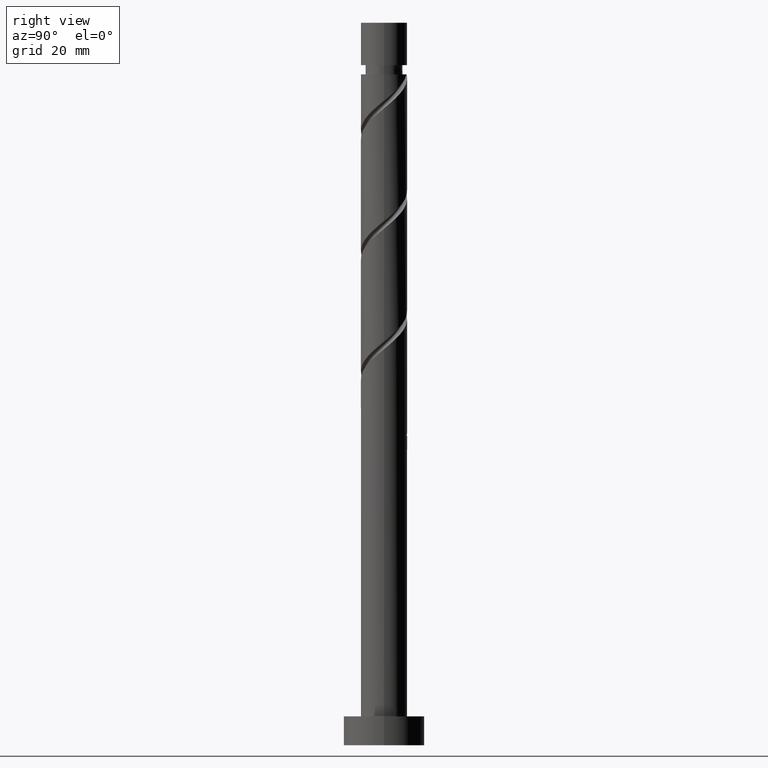
[diagram: clean part render]
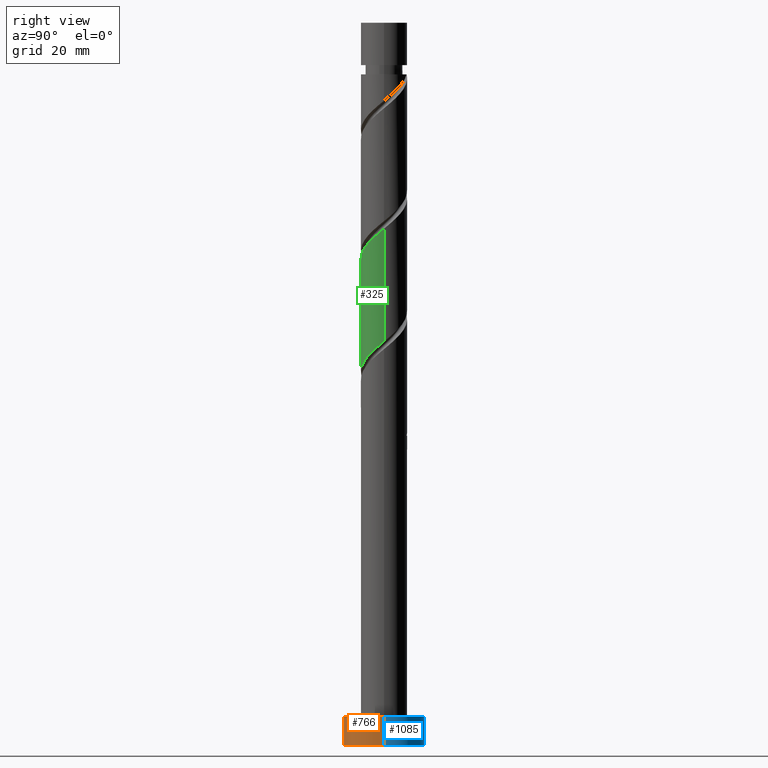
[diagram: same view with three faces highlighted in distinct colors, each labeled with its STEP entity id]
A machine part, right view with three faces highlighted in distinct colors.
Their STEP definitions:

[orange] entity #766 — the highlighted cylindrical surface (partial cylindrical patch) has radius 7 mm, axis along (-0, -0, -1).
#3 = CIRCLE ( 'NONE', #1175, 7.000000000000000000 ) ;
#13 = CARTESIAN_POINT ( 'NONE',  ( 0.000000000000000000, 0.000000000000000000, 5.000000000000000000 ) ) ;
#34 = CARTESIAN_POINT ( 'NONE',  ( 7.000000000000000000, 8.572527594031473190E-16, 5.000000000000000000 ) ) ;
#52 = ORIENTED_EDGE ( 'NONE', *, *, #238, .T. ) ;
#104 = CARTESIAN_POINT ( 'NONE',  ( -7.000000000000000000, 0.000000000000000000, 5.000000000000000000 ) ) ;
#163 = DIRECTION ( 'NONE',  ( -1.000000000000000000, 0.000000000000000000, 0.000000000000000000 ) ) ;
#171 = DIRECTION ( 'NONE',  ( 0.000000000000000000, 0.000000000000000000, 1.000000000000000000 ) ) ;
#219 = VERTEX_POINT ( 'NONE', #425 ) ;
#238 = EDGE_CURVE ( 'NONE', #219, #1468, #1443, .T. ) ;
#256 = AXIS2_PLACEMENT_3D ( 'NONE', #537, #171, #1319 ) ;
#333 = VECTOR ( 'NONE', #1010, 1000.000000000000000 ) ;
#367 = CARTESIAN_POINT ( 'NONE',  ( -7.000000000000000000, 0.000000000000000000, 5.000000000000000000 ) ) ;
#410 = CARTESIAN_POINT ( 'NONE',  ( 7.000000000000000000, 8.572527594031473190E-16, 5.000000000000000000 ) ) ;
#425 = CARTESIAN_POINT ( 'NONE',  ( -7.000000000000000000, 0.000000000000000000, 0.000000000000000000 ) ) ;
#440 = EDGE_LOOP ( 'NONE', ( #1192, #1557, #1412, #52 ) ) ;
#496 = DIRECTION ( 'NONE',  ( 1.000000000000000000, 0.000000000000000000, 0.000000000000000000 ) ) ;
#537 = CARTESIAN_POINT ( 'NONE',  ( 0.000000000000000000, 0.000000000000000000, 0.000000000000000000 ) ) ;
#621 = CARTESIAN_POINT ( 'NONE',  ( 0.000000000000000000, 0.000000000000000000, 5.000000000000000000 ) ) ;
#623 = EDGE_CURVE ( 'NONE', #967, #914, #3, .T. ) ;
#766 = ADVANCED_FACE ( 'NONE', ( #1488 ), #1259, .T. ) ;
#863 = EDGE_CURVE ( 'NONE', #914, #1468, #1131, .T. ) ;
#914 = VERTEX_POINT ( 'NONE', #410 ) ;
#949 = EDGE_CURVE ( 'NONE', #967, #219, #987, .T. ) ;
#967 = VERTEX_POINT ( 'NONE', #367 ) ;
#987 = LINE ( 'NONE', #104, #1252 ) ;
#1010 = DIRECTION ( 'NONE',  ( -0.000000000000000000, -0.000000000000000000, -1.000000000000000000 ) ) ;
#1027 = DIRECTION ( 'NONE',  ( 0.000000000000000000, 0.000000000000000000, 1.000000000000000000 ) ) ;
#1123 = DIRECTION ( 'NONE',  ( -0.000000000000000000, -0.000000000000000000, -1.000000000000000000 ) ) ;
#1131 = LINE ( 'NONE', #34, #333 ) ;
#1175 = AXIS2_PLACEMENT_3D ( 'NONE', #621, #1027, #496 ) ;
#1192 = ORIENTED_EDGE ( 'NONE', *, *, #863, .F. ) ;
#1252 = VECTOR ( 'NONE', #1123, 1000.000000000000000 ) ;
#1259 = CYLINDRICAL_SURFACE ( 'NONE', #1476, 7.000000000000000000 ) ;
#1319 = DIRECTION ( 'NONE',  ( 1.000000000000000000, 0.000000000000000000, 0.000000000000000000 ) ) ;
#1384 = CARTESIAN_POINT ( 'NONE',  ( 7.000000000000000000, 8.572527594031473190E-16, 0.000000000000000000 ) ) ;
#1412 = ORIENTED_EDGE ( 'NONE', *, *, #949, .T. ) ;
#1443 = CIRCLE ( 'NONE', #256, 7.000000000000000000 ) ;
#1468 = VERTEX_POINT ( 'NONE', #1384 ) ;
#1476 = AXIS2_PLACEMENT_3D ( 'NONE', #13, #1480, #163 ) ;
#1480 = DIRECTION ( 'NONE',  ( -0.000000000000000000, -0.000000000000000000, -1.000000000000000000 ) ) ;
#1488 = FACE_OUTER_BOUND ( 'NONE', #440, .T. ) ;
#1557 = ORIENTED_EDGE ( 'NONE', *, *, #623, .F. ) ;

[blue] entity #1085 — the highlighted cylindrical surface (partial cylindrical patch) has radius 7 mm, axis along (-0, -0, -1).
#34 = CARTESIAN_POINT ( 'NONE',  ( 7.000000000000000000, 8.572527594031473190E-16, 5.000000000000000000 ) ) ;
#92 = EDGE_CURVE ( 'NONE', #914, #967, #603, .T. ) ;
#104 = CARTESIAN_POINT ( 'NONE',  ( -7.000000000000000000, 0.000000000000000000, 5.000000000000000000 ) ) ;
#186 = DIRECTION ( 'NONE',  ( 0.000000000000000000, 0.000000000000000000, 1.000000000000000000 ) ) ;
#219 = VERTEX_POINT ( 'NONE', #425 ) ;
#333 = VECTOR ( 'NONE', #1010, 1000.000000000000000 ) ;
#367 = CARTESIAN_POINT ( 'NONE',  ( -7.000000000000000000, 0.000000000000000000, 5.000000000000000000 ) ) ;
#410 = CARTESIAN_POINT ( 'NONE',  ( 7.000000000000000000, 8.572527594031473190E-16, 5.000000000000000000 ) ) ;
#420 = CYLINDRICAL_SURFACE ( 'NONE', #641, 7.000000000000000000 ) ;
#425 = CARTESIAN_POINT ( 'NONE',  ( -7.000000000000000000, 0.000000000000000000, 0.000000000000000000 ) ) ;
#436 = AXIS2_PLACEMENT_3D ( 'NONE', #779, #1176, #630 ) ;
#438 = CARTESIAN_POINT ( 'NONE',  ( 0.000000000000000000, 0.000000000000000000, 5.000000000000000000 ) ) ;
#506 = EDGE_LOOP ( 'NONE', ( #1021, #1147, #908, #1097 ) ) ;
#527 = EDGE_CURVE ( 'NONE', #1468, #219, #865, .T. ) ;
#563 = FACE_OUTER_BOUND ( 'NONE', #506, .T. ) ;
#603 = CIRCLE ( 'NONE', #1266, 7.000000000000000000 ) ;
#630 = DIRECTION ( 'NONE',  ( 1.000000000000000000, 0.000000000000000000, 0.000000000000000000 ) ) ;
#641 = AXIS2_PLACEMENT_3D ( 'NONE', #438, #1567, #909 ) ;
#779 = CARTESIAN_POINT ( 'NONE',  ( 0.000000000000000000, 0.000000000000000000, 0.000000000000000000 ) ) ;
#863 = EDGE_CURVE ( 'NONE', #914, #1468, #1131, .T. ) ;
#865 = CIRCLE ( 'NONE', #436, 7.000000000000000000 ) ;
#908 = ORIENTED_EDGE ( 'NONE', *, *, #527, .T. ) ;
#909 = DIRECTION ( 'NONE',  ( -1.000000000000000000, 0.000000000000000000, 0.000000000000000000 ) ) ;
#914 = VERTEX_POINT ( 'NONE', #410 ) ;
#949 = EDGE_CURVE ( 'NONE', #967, #219, #987, .T. ) ;
#967 = VERTEX_POINT ( 'NONE', #367 ) ;
#987 = LINE ( 'NONE', #104, #1252 ) ;
#1010 = DIRECTION ( 'NONE',  ( -0.000000000000000000, -0.000000000000000000, -1.000000000000000000 ) ) ;
#1021 = ORIENTED_EDGE ( 'NONE', *, *, #92, .F. ) ;
#1085 = ADVANCED_FACE ( 'NONE', ( #563 ), #420, .T. ) ;
#1097 = ORIENTED_EDGE ( 'NONE', *, *, #949, .F. ) ;
#1123 = DIRECTION ( 'NONE',  ( -0.000000000000000000, -0.000000000000000000, -1.000000000000000000 ) ) ;
#1131 = LINE ( 'NONE', #34, #333 ) ;
#1147 = ORIENTED_EDGE ( 'NONE', *, *, #863, .T. ) ;
#1176 = DIRECTION ( 'NONE',  ( 0.000000000000000000, 0.000000000000000000, 1.000000000000000000 ) ) ;
#1181 = DIRECTION ( 'NONE',  ( 1.000000000000000000, 0.000000000000000000, 0.000000000000000000 ) ) ;
#1252 = VECTOR ( 'NONE', #1123, 1000.000000000000000 ) ;
#1266 = AXIS2_PLACEMENT_3D ( 'NONE', #1403, #186, #1181 ) ;
#1384 = CARTESIAN_POINT ( 'NONE',  ( 7.000000000000000000, 8.572527594031473190E-16, 0.000000000000000000 ) ) ;
#1403 = CARTESIAN_POINT ( 'NONE',  ( 0.000000000000000000, 0.000000000000000000, 5.000000000000000000 ) ) ;
#1468 = VERTEX_POINT ( 'NONE', #1384 ) ;
#1567 = DIRECTION ( 'NONE',  ( -0.000000000000000000, -0.000000000000000000, -1.000000000000000000 ) ) ;

[green] entity #325 — the highlighted cylindrical surface (edge-blend (fillet) strip) has radius 4 mm, axis along (-0, -0, -1).
#1 = CARTESIAN_POINT ( 'NONE',  ( 2.519899137249415499, -3.170406666830038578, 86.38598467915946344 ) ) ;
#44 = CARTESIAN_POINT ( 'NONE',  ( 4.000000000000000000, 4.898587196589412829E-16, 125.0000000000000000 ) ) ;
#72 = CARTESIAN_POINT ( 'NONE',  ( 1.083753322405396569, -3.902159508677975008, 65.55265134582613484 ) ) ;
#91 = FACE_OUTER_BOUND ( 'NONE', #876, .T. ) ;
#118 = DIRECTION ( 'NONE',  ( -0.000000000000000000, -0.000000000000000000, -1.000000000000000000 ) ) ;
#132 = CARTESIAN_POINT ( 'NONE',  ( 1.416856955757478609, -3.793927577315143740, 85.34431801249276361 ) ) ;
#168 = CARTESIAN_POINT ( 'NONE',  ( -4.000000000000006217, -3.238510201172437228E-15, 78.95034890435586306 ) ) ;
#180 = CARTESIAN_POINT ( 'NONE',  ( 3.793927577315137079, -1.416856955757478609, 68.67765134582613484 ) ) ;
#190 = CARTESIAN_POINT ( 'NONE',  ( 2.703475464551749141, -2.948087585633558660, 67.11515134582612063 ) ) ;
#203 = CARTESIAN_POINT ( 'NONE',  ( -0.1751229436131139794, -4.046072422684861891, 64.51098467915946344 ) ) ;
#207 = VERTEX_POINT ( 'NONE', #905 ) ;
#222 = EDGE_CURVE ( 'NONE', #414, #1078, #1199, .T. ) ;
#236 = CARTESIAN_POINT ( 'NONE',  ( -1.660148792339434909, -3.639217771347843744, 82.74015134582612063 ) ) ;
#242 = CARTESIAN_POINT ( 'NONE',  ( 0.7959899496852957945, -3.920000000000007034, 84.82348467915944923 ) ) ;
#248 = CARTESIAN_POINT ( 'NONE',  ( 3.639217771347843744, -1.660148792339434909, 87.94848467915946344 ) ) ;
#261 = EDGE_CURVE ( 'NONE', #1399, #1078, #331, .T. ) ;
#278 = ORIENTED_EDGE ( 'NONE', *, *, #261, .T. ) ;
#325 = ADVANCED_FACE ( 'NONE', ( #91 ), #814, .T. ) ;
#331 = LINE ( 'NONE', #695, #453 ) ;
#343 = CARTESIAN_POINT ( 'NONE',  ( 0.000000000000000000, 0.000000000000000000, 125.0000000000000000 ) ) ;
#355 = AXIS2_PLACEMENT_3D ( 'NONE', #343, #432, #1207 ) ;
#363 = CARTESIAN_POINT ( 'NONE',  ( -3.170406666830038578, -2.519899137249415944, 81.17765134582610642 ) ) ;
#391 = CARTESIAN_POINT ( 'NONE',  ( 3.170406666830034137, -2.519899137249413723, 67.63598467915947765 ) ) ;
#398 = CARTESIAN_POINT ( 'NONE',  ( 4.000000000000000000, -0.4020151261036817858, 69.52898254522187926 ) ) ;
#407 = CARTESIAN_POINT ( 'NONE',  ( 2.236544262273464589, -3.376276034017704042, 66.59431801249279204 ) ) ;
#414 = VERTEX_POINT ( 'NONE', #451 ) ;
#432 = DIRECTION ( 'NONE',  ( -0.000000000000000000, -0.000000000000000000, -1.000000000000000000 ) ) ;
#451 = CARTESIAN_POINT ( 'NONE',  ( 4.000000000000000000, -4.737820479493044903E-15, 69.86328712062974944 ) ) ;
#453 = VECTOR ( 'NONE', #118, 1000.000000000000000 ) ;
#477 = CARTESIAN_POINT ( 'NONE',  ( 0.1751229436131123418, -4.046072422684866332, 84.30265134582612063 ) ) ;
#480 = CARTESIAN_POINT ( 'NONE',  ( 3.902159508677979005, -1.083753322405400121, 88.46931801249282046 ) ) ;
#486 = VECTOR ( 'NONE', #644, 1000.000000000000000 ) ;
#530 = CARTESIAN_POINT ( 'NONE',  ( -2.948087585633558660, -2.703475464551749141, 61.90681801249279204 ) ) ;
#612 = CARTESIAN_POINT ( 'NONE',  ( -4.000000000000007105, -0.4020151261036752910, 79.28465347976369060 ) ) ;
#643 = CARTESIAN_POINT ( 'NONE',  ( -3.639217771347837527, -1.660148792339430468, 60.86515134582613484 ) ) ;
#644 = DIRECTION ( 'NONE',  ( -0.000000000000000000, -0.000000000000000000, -1.000000000000000000 ) ) ;
#663 = CARTESIAN_POINT ( 'NONE',  ( 1.660148792339430468, -3.639217771347837527, 66.07348467915946344 ) ) ;
#673 = CARTESIAN_POINT ( 'NONE',  ( -1.416856955757478165, -3.793927577315137967, 63.46931801249280625 ) ) ;
#695 = CARTESIAN_POINT ( 'NONE',  ( -4.000000000000000000, 0.000000000000000000, 125.0000000000000000 ) ) ;
#734 = CARTESIAN_POINT ( 'NONE',  ( -1.083753322405399677, -3.902159508677979005, 83.26098467915944923 ) ) ;
#740 = ORIENTED_EDGE ( 'NONE', *, *, #1320, .F. ) ;
#753 = CARTESIAN_POINT ( 'NONE',  ( -3.902159508677975008, -1.083753322405397235, 60.34431801249281335 ) ) ;
#814 = CYLINDRICAL_SURFACE ( 'NONE', #355, 4.000000000000000000 ) ;
#825 = CARTESIAN_POINT ( 'NONE',  ( -3.482167122072593379, -1.968378046503447942, 80.65681801249282046 ) ) ;
#830 = CARTESIAN_POINT ( 'NONE',  ( -2.703475464551754914, -2.948087585633562213, 81.69848467915946344 ) ) ;
#846 = CARTESIAN_POINT ( 'NONE',  ( -3.920000000000007034, -0.7959899496852961276, 79.61515134582613484 ) ) ;
#861 = LINE ( 'NONE', #44, #486 ) ;
#876 = EDGE_LOOP ( 'NONE', ( #1107, #740, #278, #1278 ) ) ;
#878 = CARTESIAN_POINT ( 'NONE',  ( -1.968378046503446388, -3.482167122072585830, 62.94848467915946344 ) ) ;
#905 = CARTESIAN_POINT ( 'NONE',  ( 4.000000000000005329, 2.698758500977031023E-15, 89.36701557102250604 ) ) ;
#979 = CARTESIAN_POINT ( 'NONE',  ( 2.948087585633562213, -2.703475464551754914, 86.90681801249282046 ) ) ;
#990 = CARTESIAN_POINT ( 'NONE',  ( 3.974115965681424001, -0.4543151893961438481, 88.99015134582612063 ) ) ;
#1049 = CARTESIAN_POINT ( 'NONE',  ( -0.7959899496852960166, -3.919999999999999929, 63.99015134582612774 ) ) ;
#1078 = VERTEX_POINT ( 'NONE', #1183 ) ;
#1102 = CARTESIAN_POINT ( 'NONE',  ( 1.968378046503447942, -3.482167122072593379, 85.86515134582612063 ) ) ;
#1107 = ORIENTED_EDGE ( 'NONE', *, *, #1463, .F. ) ;
#1126 = CARTESIAN_POINT ( 'NONE',  ( 4.000000000000005329, 2.698758500977031023E-15, 89.36701557102250604 ) ) ;
#1162 = CARTESIAN_POINT ( 'NONE',  ( 3.482167122072585830, -1.968378046503446388, 68.15681801249282046 ) ) ;
#1179 = CARTESIAN_POINT ( 'NONE',  ( -2.519899137249413723, -3.170406666830034137, 62.42765134582613484 ) ) ;
#1183 = CARTESIAN_POINT ( 'NONE',  ( -4.000000000000000000, 4.318013601563281980E-15, 59.44662045396307803 ) ) ;
#1199 =( BOUNDED_CURVE ( )  B_SPLINE_CURVE ( 2, ( #1419, #398, #1280, #180, #1162, #391, #190, #407, #663, #72, #1400, #203, #1049, #673, #878, #1179, #530, #1530, #643, #753, #1289, #1268, #1409 ),
 .UNSPECIFIED., .F., .T. ) 
 B_SPLINE_CURVE_WITH_KNOTS ( ( 3, 2, 2, 2, 2, 2, 2, 2, 2, 2, 2, 3 ),
 ( 0.8045322023138551382, 0.8125000000000000000, 0.8249999999999999556, 0.8375000000000000222, 0.8499999999999999778, 0.8625000000000000444, 0.8750000000000000000, 0.8874999999999999556, 0.9000000000000000222, 0.9124999999999999778, 0.9250000000000000444, 0.9295322023138552492 ),
 .UNSPECIFIED. ) 
 CURVE ( )  GEOMETRIC_REPRESENTATION_ITEM ( )  RATIONAL_B_SPLINE_CURVE ( ( 0.9039174447099329601, 0.9019565955404623692, 0.9090909090909108370, 0.8978984914501269010, 0.9090909090909108370, 0.8978984914501269010, 0.9090909090909108370, 0.8978984914501269010, 0.9090909090909108370, 0.8978984914501269010, 0.9090909090909108370, 0.8978984914501269010, 0.9090909090909108370, 0.8978984914501269010, 0.9090909090909108370, 0.8978984914501269010, 0.9090909090909108370, 0.8978984914501269010, 0.9090909090909108370, 0.8978984914501269010, 0.9090909090909108370, 0.9050328050005751468, 0.9039174447099329601 ) ) 
 REPRESENTATION_ITEM ( '' )  );
#1207 = DIRECTION ( 'NONE',  ( -1.000000000000000000, 0.000000000000000000, 0.000000000000000000 ) ) ;
#1251 = CARTESIAN_POINT ( 'NONE',  ( -3.793927577315143740, -1.416856955757479053, 80.13598467915947765 ) ) ;
#1268 = CARTESIAN_POINT ( 'NONE',  ( -4.000000000000000000, -0.2278949497857293560, 59.63613154317035736 ) ) ;
#1278 = ORIENTED_EDGE ( 'NONE', *, *, #222, .F. ) ;
#1280 = CARTESIAN_POINT ( 'NONE',  ( 3.919999999999999929, -0.7959899496852962386, 69.19848467915946344 ) ) ;
#1289 = CARTESIAN_POINT ( 'NONE',  ( -3.974115965681417784, -0.4543151893961416832, 59.82348467915947055 ) ) ;
#1320 = EDGE_CURVE ( 'NONE', #1399, #207, #1353, .T. ) ;
#1344 = CARTESIAN_POINT ( 'NONE',  ( -2.236544262273469030, -3.376276034017707151, 82.21931801249273519 ) ) ;
#1348 = CARTESIAN_POINT ( 'NONE',  ( -0.4543151893961436261, -3.974115965681424001, 83.78181801249280625 ) ) ;
#1353 =( BOUNDED_CURVE ( )  B_SPLINE_CURVE ( 2, ( #1465, #612, #846, #1251, #825, #363, #830, #1344, #236, #734, #1348, #477, #242, #132, #1102, #1, #979, #1355, #248, #480, #990, #1478, #1126 ),
 .UNSPECIFIED., .F., .T. ) 
 B_SPLINE_CURVE_WITH_KNOTS ( ( 3, 2, 2, 2, 2, 2, 2, 2, 2, 2, 2, 3 ),
 ( 0.3045322023138550271, 0.3125000000000000000, 0.3249999999999999556, 0.3375000000000000222, 0.3499999999999999778, 0.3625000000000000444, 0.3750000000000000000, 0.3874999999999999556, 0.4000000000000000222, 0.4124999999999999778, 0.4250000000000000444, 0.4295322023138549716 ),
 .UNSPECIFIED. ) 
 CURVE ( )  GEOMETRIC_REPRESENTATION_ITEM ( )  RATIONAL_B_SPLINE_CURVE ( ( 0.9039174447099397325, 0.9019565955404689195, 0.9090909090909172763, 0.8978984914501335624, 0.9090909090909172763, 0.8978984914501335624, 0.9090909090909172763, 0.8978984914501335624, 0.9090909090909172763, 0.8978984914501335624, 0.9090909090909172763, 0.8978984914501335624, 0.9090909090909172763, 0.8978984914501335624, 0.9090909090909172763, 0.8978984914501335624, 0.9090909090909172763, 0.8978984914501335624, 0.9090909090909172763, 0.8978984914501335624, 0.9090909090909172763, 0.9050328050005819192, 0.9039174447099396215 ) ) 
 REPRESENTATION_ITEM ( '' )  );
#1355 = CARTESIAN_POINT ( 'NONE',  ( 3.376276034017707151, -2.236544262273469474, 87.42765134582609221 ) ) ;
#1399 = VERTEX_POINT ( 'NONE', #168 ) ;
#1400 = CARTESIAN_POINT ( 'NONE',  ( 0.4543151893961414056, -3.974115965681417784, 65.03181801249280625 ) ) ;
#1409 = CARTESIAN_POINT ( 'NONE',  ( -4.000000000000000000, 4.318013601563281980E-15, 59.44662045396307803 ) ) ;
#1419 = CARTESIAN_POINT ( 'NONE',  ( 4.000000000000000000, -4.737820479493044903E-15, 69.86328712062974944 ) ) ;
#1463 = EDGE_CURVE ( 'NONE', #207, #414, #861, .T. ) ;
#1465 = CARTESIAN_POINT ( 'NONE',  ( -4.000000000000006217, -3.238510201172437228E-15, 78.95034890435586306 ) ) ;
#1478 = CARTESIAN_POINT ( 'NONE',  ( 4.000000000000004441, -0.2278949497857452045, 89.17750448181521961 ) ) ;
#1530 = CARTESIAN_POINT ( 'NONE',  ( -3.376276034017703598, -2.236544262273464589, 61.38598467915946344 ) ) ;